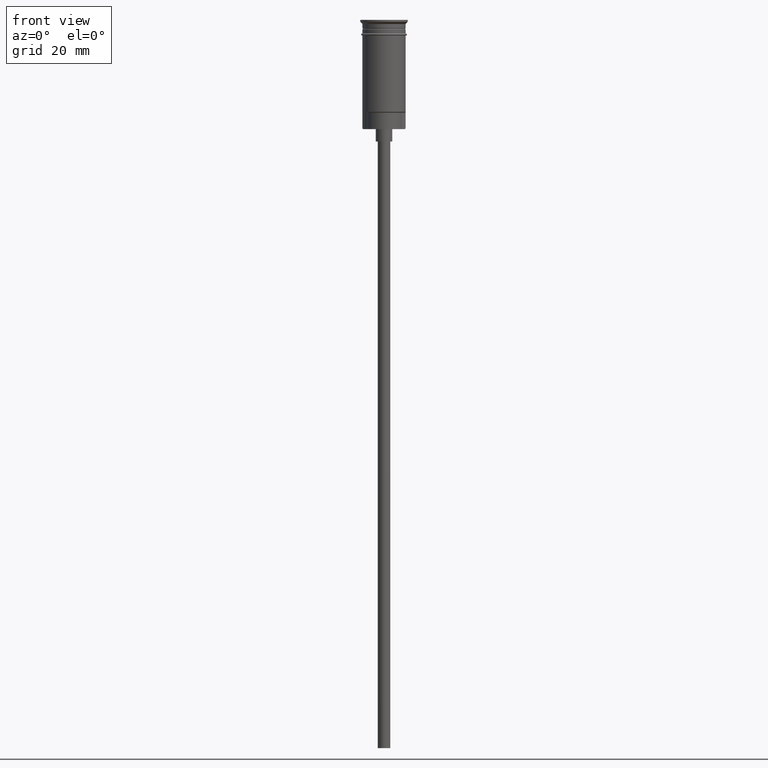
[diagram: clean part render]
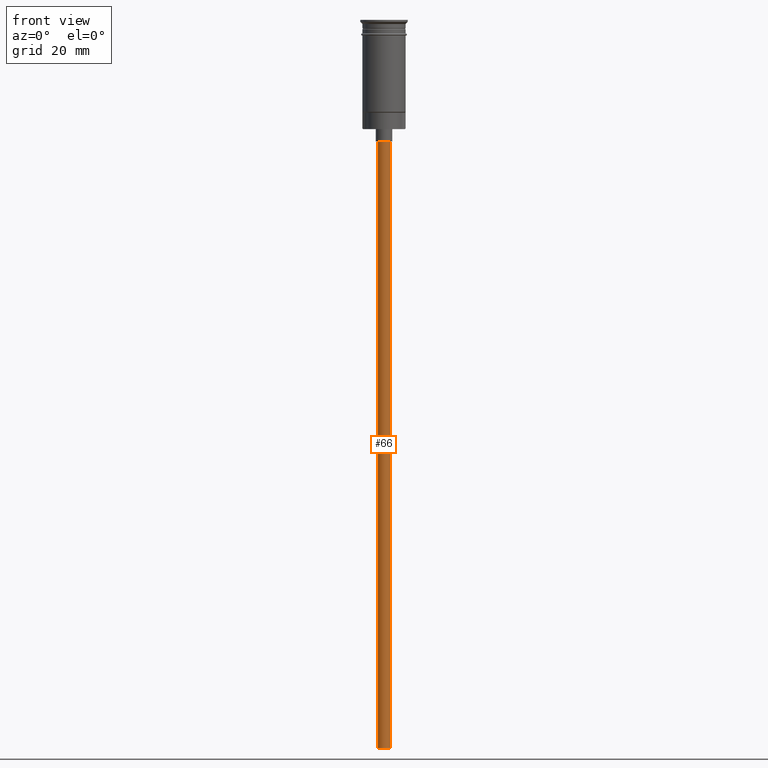
[diagram: same view with one face highlighted and labeled with its STEP entity id]
A machine part, front view. The second image highlights one B-rep face of the part: STEP entity #66.
In plain terms, the highlighted cylindrical surface (edge-blend (fillet) strip) has radius 1.5 mm, axis along (-0, -0, 1).
Its self-contained STEP definition (entity closure, byte-faithful):
#66 = ADVANCED_FACE ( 'NONE', ( #585 ), #550, .T. ) ;
#90 = VERTEX_POINT ( 'NONE', #827 ) ;
#172 = LINE ( 'NONE', #812, #1414 ) ;
#181 = ORIENTED_EDGE ( 'NONE', *, *, #1284, .T. ) ;
#220 = VERTEX_POINT ( 'NONE', #1595 ) ;
#330 = AXIS2_PLACEMENT_3D ( 'NONE', #570, #1306, #1569 ) ;
#331 = DIRECTION ( 'NONE',  ( -1.000000000000000000, 0.000000000000000000, 0.000000000000000000 ) ) ;
#340 = ORIENTED_EDGE ( 'NONE', *, *, #365, .F. ) ;
#365 = EDGE_CURVE ( 'NONE', #90, #220, #172, .T. ) ;
#372 = DIRECTION ( 'NONE',  ( -1.000000000000000000, 0.000000000000000000, 0.000000000000000000 ) ) ;
#382 = VECTOR ( 'NONE', #584, 1000.000000000000000 ) ;
#393 = CARTESIAN_POINT ( 'NONE',  ( 1.500000000000000222, 0.000000000000000000, -176.5000000000000000 ) ) ;
#414 = EDGE_CURVE ( 'NONE', #1265, #220, #1571, .T. ) ;
#484 = ORIENTED_EDGE ( 'NONE', *, *, #1538, .F. ) ;
#509 = VERTEX_POINT ( 'NONE', #393 ) ;
#550 = CYLINDRICAL_SURFACE ( 'NONE', #330, 1.500000000000000222 ) ;
#570 = CARTESIAN_POINT ( 'NONE',  ( 0.000000000000000000, 0.000000000000000000, -176.5000000000000000 ) ) ;
#584 = DIRECTION ( 'NONE',  ( -0.000000000000000000, -0.000000000000000000, 1.000000000000000000 ) ) ;
#585 = FACE_OUTER_BOUND ( 'NONE', #657, .T. ) ;
#657 = EDGE_LOOP ( 'NONE', ( #340, #484, #181, #918 ) ) ;
#696 = CIRCLE ( 'NONE', #1115, 1.500000000000000222 ) ;
#714 = AXIS2_PLACEMENT_3D ( 'NONE', #1336, #715, #331 ) ;
#715 = DIRECTION ( 'NONE',  ( 0.000000000000000000, 0.000000000000000000, -1.000000000000000000 ) ) ;
#809 = CARTESIAN_POINT ( 'NONE',  ( 1.500000000000000222, 0.000000000000000000, -29.50000000000000000 ) ) ;
#812 = CARTESIAN_POINT ( 'NONE',  ( -1.500000000000000222, 1.836970198721030181E-16, -176.5000000000000000 ) ) ;
#827 = CARTESIAN_POINT ( 'NONE',  ( -1.500000000000000222, 1.836970198721030181E-16, -176.5000000000000000 ) ) ;
#918 = ORIENTED_EDGE ( 'NONE', *, *, #414, .T. ) ;
#945 = CARTESIAN_POINT ( 'NONE',  ( 1.500000000000000222, 0.000000000000000000, -176.5000000000000000 ) ) ;
#1109 = CARTESIAN_POINT ( 'NONE',  ( 0.000000000000000000, 0.000000000000000000, -176.5000000000000000 ) ) ;
#1115 = AXIS2_PLACEMENT_3D ( 'NONE', #1109, #1488, #372 ) ;
#1265 = VERTEX_POINT ( 'NONE', #809 ) ;
#1284 = EDGE_CURVE ( 'NONE', #509, #1265, #1413, .T. ) ;
#1295 = DIRECTION ( 'NONE',  ( -0.000000000000000000, -0.000000000000000000, 1.000000000000000000 ) ) ;
#1306 = DIRECTION ( 'NONE',  ( -0.000000000000000000, -0.000000000000000000, 1.000000000000000000 ) ) ;
#1336 = CARTESIAN_POINT ( 'NONE',  ( 0.000000000000000000, 0.000000000000000000, -29.50000000000000000 ) ) ;
#1413 = LINE ( 'NONE', #945, #382 ) ;
#1414 = VECTOR ( 'NONE', #1295, 1000.000000000000000 ) ;
#1488 = DIRECTION ( 'NONE',  ( 0.000000000000000000, 0.000000000000000000, -1.000000000000000000 ) ) ;
#1538 = EDGE_CURVE ( 'NONE', #509, #90, #696, .T. ) ;
#1569 = DIRECTION ( 'NONE',  ( 1.000000000000000000, 0.000000000000000000, 0.000000000000000000 ) ) ;
#1571 = CIRCLE ( 'NONE', #714, 1.500000000000000222 ) ;
#1595 = CARTESIAN_POINT ( 'NONE',  ( -1.500000000000000222, 1.836970198721030181E-16, -29.50000000000000000 ) ) ;